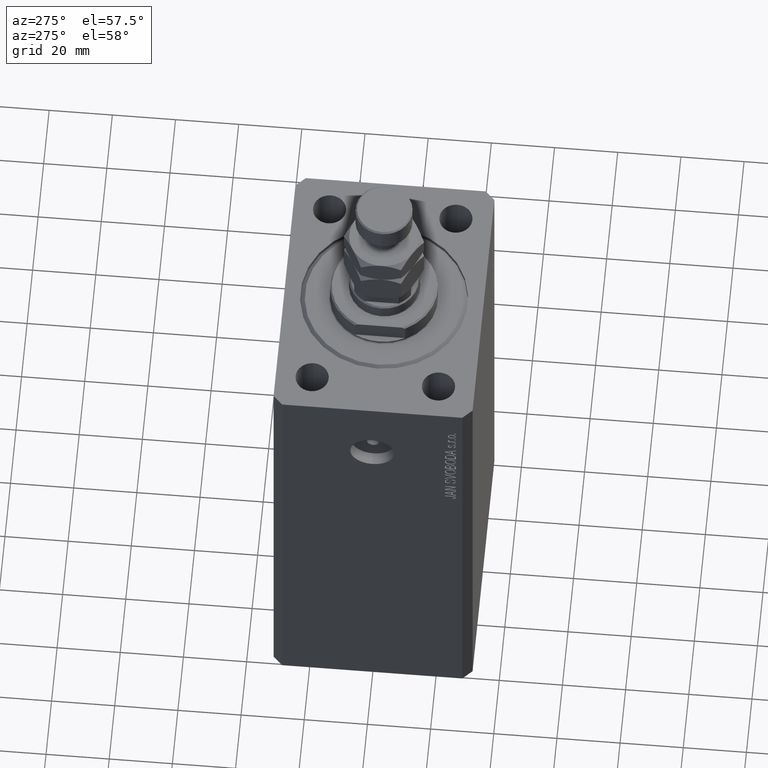
[diagram: clean part render]
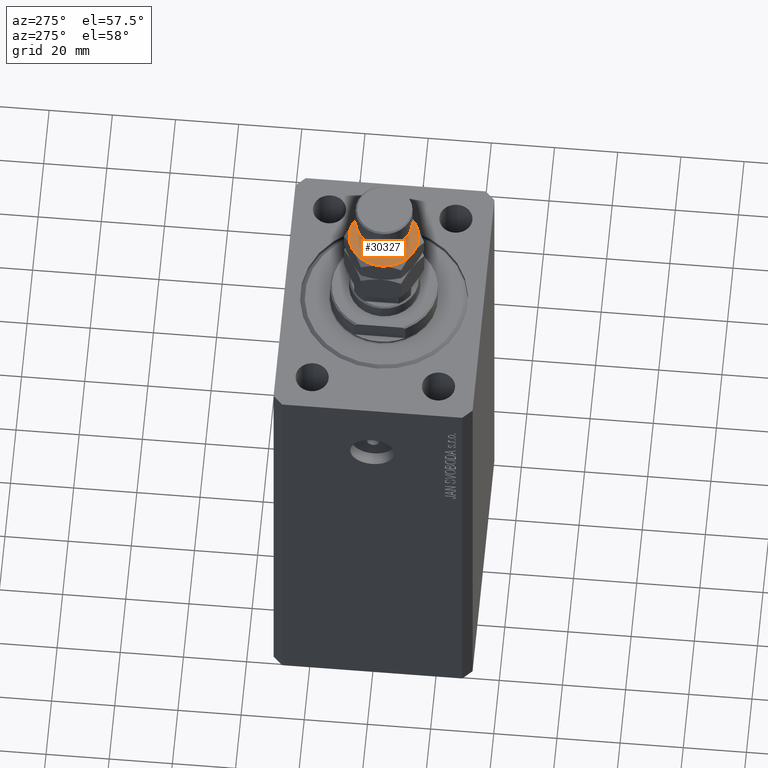
[diagram: same view with one face highlighted and labeled with its STEP entity id]
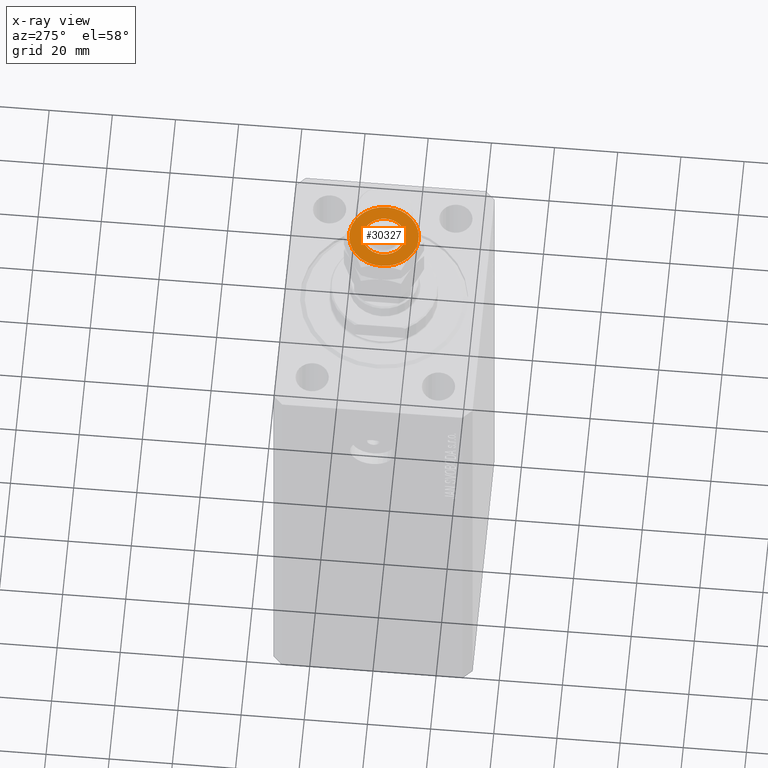
[diagram: x-ray of the same camera — body ghosted, the highlighted face saturated]
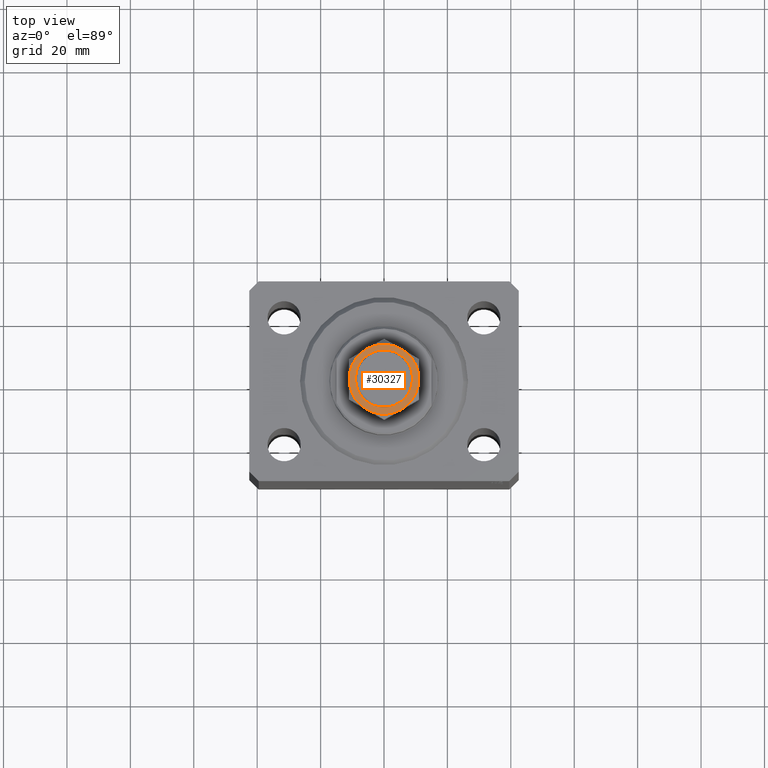
[diagram: same view with one face highlighted and labeled with its STEP entity id]
A machine part, auxiliary view. The second image highlights one B-rep face of the part: STEP entity #30327.
The next image is the same camera in x-ray: the body ghosted, the highlighted face saturated — about 0% of this face is hidden behind the body in this view.
A second angle (top view) of the same face is appended — the face is thin or edge-on in the first view.
In plain terms, the highlighted planar face has unit normal (0, 0, 1).
Its self-contained STEP definition (entity closure, byte-faithful):
#499 = PLANE ( 'NONE',  #44872 ) ;
#1149 = VERTEX_POINT ( 'NONE', #23818 ) ;
#1228 = EDGE_CURVE ( 'NONE', #5650, #16257, #25454, .T. ) ;
#1645 = CARTESIAN_POINT ( 'NONE',  ( 0.000000000000000000, 0.000000000000000000, 19.00000000000000000 ) ) ;
#1876 = DIRECTION ( 'NONE',  ( -0.000000000000000000, 0.000000000000000000, -1.000000000000000000 ) ) ;
#2135 = CARTESIAN_POINT ( 'NONE',  ( 0.000000000000000000, 0.000000000000000000, 19.00000000000000000 ) ) ;
#2699 = CIRCLE ( 'NONE', #33325, 10.99999999999999289 ) ;
#3858 = ORIENTED_EDGE ( 'NONE', *, *, #33623, .T. ) ;
#4159 = CARTESIAN_POINT ( 'NONE',  ( -10.99999999999999289, 0.000000000000000000, 19.00000000000000000 ) ) ;
#4228 = FACE_OUTER_BOUND ( 'NONE', #32106, .T. ) ;
#4346 = CARTESIAN_POINT ( 'NONE',  ( 0.000000000000000000, 0.000000000000000000, 19.00000000000000000 ) ) ;
#5526 = ORIENTED_EDGE ( 'NONE', *, *, #1228, .T. ) ;
#5580 = CIRCLE ( 'NONE', #40707, 10.99999999999999289 ) ;
#5650 = VERTEX_POINT ( 'NONE', #30363 ) ;
#6425 = EDGE_CURVE ( 'NONE', #12965, #37703, #5580, .T. ) ;
#6430 = EDGE_CURVE ( 'NONE', #15623, #12965, #11544, .T. ) ;
#6688 = DIRECTION ( 'NONE',  ( 1.000000000000000000, 0.000000000000000000, 0.000000000000000000 ) ) ;
#6839 = CIRCLE ( 'NONE', #39713, 10.99999999999999289 ) ;
#7269 = FACE_BOUND ( 'NONE', #46042, .T. ) ;
#7419 = CARTESIAN_POINT ( 'NONE',  ( 0.000000000000000000, 0.000000000000000000, 19.00000000000000000 ) ) ;
#8209 = ORIENTED_EDGE ( 'NONE', *, *, #6425, .T. ) ;
#11255 = ORIENTED_EDGE ( 'NONE', *, *, #32526, .T. ) ;
#11544 = CIRCLE ( 'NONE', #38492, 10.99999999999999289 ) ;
#11912 = CARTESIAN_POINT ( 'NONE',  ( 0.000000000000000000, 0.000000000000000000, 19.00000000000000000 ) ) ;
#12171 = AXIS2_PLACEMENT_3D ( 'NONE', #2135, #12884, #34649 ) ;
#12379 = DIRECTION ( 'NONE',  ( 1.000000000000000000, 0.000000000000000000, 0.000000000000000000 ) ) ;
#12884 = DIRECTION ( 'NONE',  ( -0.000000000000000000, 0.000000000000000000, -1.000000000000000000 ) ) ;
#12965 = VERTEX_POINT ( 'NONE', #4159 ) ;
#13617 = EDGE_CURVE ( 'NONE', #37703, #5650, #2699, .T. ) ;
#15380 = CARTESIAN_POINT ( 'NONE',  ( 6.699999999999999289, 0.000000000000000000, 19.00000000000000000 ) ) ;
#15623 = VERTEX_POINT ( 'NONE', #23292 ) ;
#16257 = VERTEX_POINT ( 'NONE', #16845 ) ;
#16531 = CARTESIAN_POINT ( 'NONE',  ( -6.699999999999999289, 8.205133554287265576E-16, 19.00000000000000000 ) ) ;
#16845 = CARTESIAN_POINT ( 'NONE',  ( 10.99999999999999289, 1.502314598737159031E-15, 19.00000000000000000 ) ) ;
#16970 = DIRECTION ( 'NONE',  ( 1.000000000000000000, 0.000000000000000000, 0.000000000000000000 ) ) ;
#17934 = DIRECTION ( 'NONE',  ( 1.000000000000000000, 0.000000000000000000, 0.000000000000000000 ) ) ;
#18183 = DIRECTION ( 'NONE',  ( 1.000000000000000000, 0.000000000000000000, 0.000000000000000000 ) ) ;
#19446 = AXIS2_PLACEMENT_3D ( 'NONE', #1645, #1876, #12379 ) ;
#20396 = ORIENTED_EDGE ( 'NONE', *, *, #30408, .T. ) ;
#21482 = CARTESIAN_POINT ( 'NONE',  ( -5.500000000000000000, -9.526279441628824785, 19.00000000000000000 ) ) ;
#21673 = DIRECTION ( 'NONE',  ( 0.000000000000000000, 0.000000000000000000, 1.000000000000000000 ) ) ;
#21700 = CIRCLE ( 'NONE', #19446, 6.699999999999999289 ) ;
#21716 = AXIS2_PLACEMENT_3D ( 'NONE', #7419, #33151, #18183 ) ;
#22007 = CARTESIAN_POINT ( 'NONE',  ( 0.000000000000000000, 0.000000000000000000, 19.00000000000000000 ) ) ;
#22555 = ORIENTED_EDGE ( 'NONE', *, *, #44568, .T. ) ;
#23292 = CARTESIAN_POINT ( 'NONE',  ( -5.499999999999997335, 9.526279441628819455, 19.00000000000000000 ) ) ;
#23818 = CARTESIAN_POINT ( 'NONE',  ( 5.499999999999999112, 9.526279441628817679, 19.00000000000000000 ) ) ;
#23934 = AXIS2_PLACEMENT_3D ( 'NONE', #4346, #21673, #17934 ) ;
#24454 = CARTESIAN_POINT ( 'NONE',  ( 0.000000000000000000, 0.000000000000000000, 19.00000000000000000 ) ) ;
#25429 = DIRECTION ( 'NONE',  ( 0.000000000000000000, -0.000000000000000000, 1.000000000000000000 ) ) ;
#25454 = CIRCLE ( 'NONE', #21716, 10.99999999999999289 ) ;
#26192 = DIRECTION ( 'NONE',  ( 0.000000000000000000, -0.000000000000000000, 1.000000000000000000 ) ) ;
#30327 = ADVANCED_FACE ( 'NONE', ( #7269, #4228 ), #499, .T. ) ;
#30363 = CARTESIAN_POINT ( 'NONE',  ( 5.499999999999998224, -9.526279441628817679, 19.00000000000000000 ) ) ;
#30408 = EDGE_CURVE ( 'NONE', #30573, #36542, #21700, .T. ) ;
#30573 = VERTEX_POINT ( 'NONE', #15380 ) ;
#32106 = EDGE_LOOP ( 'NONE', ( #5526, #22555, #11255, #38516, #8209, #32511 ) ) ;
#32511 = ORIENTED_EDGE ( 'NONE', *, *, #13617, .T. ) ;
#32526 = EDGE_CURVE ( 'NONE', #1149, #15623, #6839, .T. ) ;
#33151 = DIRECTION ( 'NONE',  ( 0.000000000000000000, -0.000000000000000000, 1.000000000000000000 ) ) ;
#33325 = AXIS2_PLACEMENT_3D ( 'NONE', #11912, #26192, #40474 ) ;
#33623 = EDGE_CURVE ( 'NONE', #36542, #30573, #39822, .T. ) ;
#34649 = DIRECTION ( 'NONE',  ( 1.000000000000000000, 0.000000000000000000, 0.000000000000000000 ) ) ;
#34770 = DIRECTION ( 'NONE',  ( 0.000000000000000000, -0.000000000000000000, 1.000000000000000000 ) ) ;
#35598 = DIRECTION ( 'NONE',  ( 0.000000000000000000, -0.000000000000000000, 1.000000000000000000 ) ) ;
#36297 = DIRECTION ( 'NONE',  ( 1.000000000000000000, 0.000000000000000000, -0.000000000000000000 ) ) ;
#36542 = VERTEX_POINT ( 'NONE', #16531 ) ;
#37703 = VERTEX_POINT ( 'NONE', #21482 ) ;
#38492 = AXIS2_PLACEMENT_3D ( 'NONE', #42029, #38743, #6688 ) ;
#38516 = ORIENTED_EDGE ( 'NONE', *, *, #6430, .T. ) ;
#38743 = DIRECTION ( 'NONE',  ( 0.000000000000000000, -0.000000000000000000, 1.000000000000000000 ) ) ;
#39713 = AXIS2_PLACEMENT_3D ( 'NONE', #42292, #25429, #39716 ) ;
#39716 = DIRECTION ( 'NONE',  ( 1.000000000000000000, 0.000000000000000000, 0.000000000000000000 ) ) ;
#39822 = CIRCLE ( 'NONE', #12171, 6.699999999999999289 ) ;
#40474 = DIRECTION ( 'NONE',  ( 1.000000000000000000, 0.000000000000000000, 0.000000000000000000 ) ) ;
#40707 = AXIS2_PLACEMENT_3D ( 'NONE', #24454, #34770, #16970 ) ;
#42029 = CARTESIAN_POINT ( 'NONE',  ( 0.000000000000000000, 0.000000000000000000, 19.00000000000000000 ) ) ;
#42292 = CARTESIAN_POINT ( 'NONE',  ( 0.000000000000000000, 0.000000000000000000, 19.00000000000000000 ) ) ;
#44102 = CIRCLE ( 'NONE', #23934, 10.99999999999999289 ) ;
#44568 = EDGE_CURVE ( 'NONE', #16257, #1149, #44102, .T. ) ;
#44872 = AXIS2_PLACEMENT_3D ( 'NONE', #22007, #35598, #36297 ) ;
#46042 = EDGE_LOOP ( 'NONE', ( #20396, #3858 ) ) ;